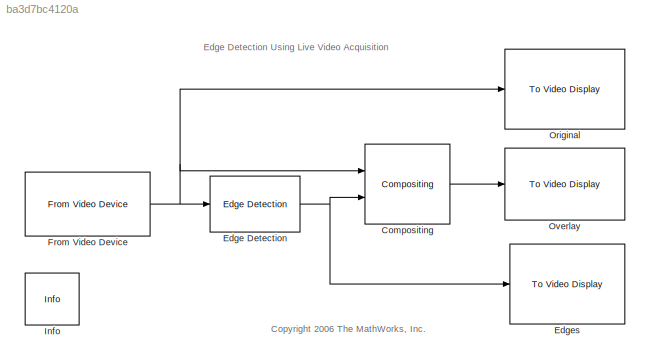
MODEL slx_ba3d7bc4120a
KIND model
CONFIG AbsTol = auto
CONFIG FixedStep = auto
CONFIG MaxStep = auto
CONFIG MinStep = auto
CONFIG RelTol = 1e-3
CONFIG SampleTimeConstraint = Unconstrained
CONFIG Solver = FixedStepDiscrete
CONFIG SolverMode = Auto
CONFIG SolverName = FixedStepDiscrete
CONFIG StartTime = 0.0
CONFIG StopTime = inf
BLOCK [Reference] Compositing  REF=visiontextngfix/Compositing
  LockScale = off
  Ports = [2, 1]
  SourceBlock = visiontextngfix/Compositing
  SourceType = Compositing
  accumFracLength = 10
  accumMode = Same as product output
  accumWordLength = 32
  bFacSrc = Input port
  bFactor = 0.75
  coordinates = [1 1]
  firstCoeffFracLength = 15
  firstCoeffMode = Same word length as input
  firstCoeffWordLength = 16
  mFacSrc = Input port
  mFactor = 1
  operation = Highlight selected pixels
  outputFracLength = 10
  outputMode = Same as first input
  outputWordLength = 32
  overflowMode = off
  prodOutputFracLength = 10
  prodOutputMode = Binary point scaling
  prodOutputWordLength = 32
  roundingMode = Floor
  source = Specify via dialog
BLOCK [Reference] Edge Detection  REF=visionanalysis/Edge Detection
  LockScale = off
  Ports = [1, 1]
  SourceBlock = visionanalysis/Edge Detection
  SourceType = Edge Detection
  accumFracLength = 8
  accumMode = Same as product output
  accumWordLength = 32
  autoPercent = 70
  edgeThinning = on
  method = Sobel
  outputFracLength = 0
  outputMode = Same as first input
  outputType = Binary image
  outputWordLength = 0
  overflowMode = off
  prodOutputFracLength = 8
  prodOutputMode = Same as first input
  prodOutputWordLength = 32
  roundingMode = Floor
  sigma = 1
  threshold = single(50/256)
  thresholdSource = Specify via dialog
  thresholdTuning = 4
  threshold_canny = [0.25 0.60]
  userDefinedThreshold = off
BLOCK [Reference] Edges  REF=visionsinks/To Video Display
  OutputDevice = On-screen video monitor
  Ports = [1]
  SourceBlock = visionsinks/To Video Display
  SourceType = To Video Display
  dataOrg = Column-major
  fullScreen = off
  imagePorts = One multidimensional signal
  inputColorFormat = RGB
  inputType = Obsolete
  isWindowOpen = off
  openAtMdlStart = on
  saveWindowSize = off
  videoWindowHeight = 147
  videoWindowWidth = 168
  videoWindowX = 444
  videoWindowY = 313
  windowSizeMode = True size (1:1)
BLOCK [Reference] From Video Device  REF=imaqlib/From Video Device
  AllMetadata = IsPositionTracked;IsSkeletonTracked;JointDepthIndices;JointImageIndices;JointTrackingState;JointWorldCoordinates;PositionDepthIndices;PositionImageIndices;PositionWorldCoordinates;SegmentationData;SkeletonTrackingID
  BayerSensorAlignment = grbg
  BlockHandle = 30.1971
  CanDoHWTrigger = no
  DataType = single
  DevXMLPath = <path>
  Device = winvideo 1 (ASUS USB2.0 Webcam)
  DeviceMenu = winvideo 1 (ASUS USB2.0 Webcam)
  EnableHWTrigger = off
  EngLibPath = C:\Program Files\MATLAB\MATLAB Production Server\R2015a\toolbox\imaq\imaqblks\imaqmex\win64
  EngXMLPath = C:\Program Files\MATLAB\MATLAB Production Server\R2015a\toolbox\imaq\imaq\private
  ObjConstructor = videoinput('winvideo', 1)
  OutputPortsMode = One multidimensional signal
  Ports = [0, 1]
  ROIColumn = 0
  ROIHeight = 720
  ROIPosition = [0 0 720 1280]
  ROIRow = 0
  ROIWidth = 1280
  ReturnedColorSpace = grayscale
  SampleTime = 1/30
  SourceBlock = imaqlib/From Video Device
  SourceType = From Video Device
  TriggerConfiguration = none/none
  UserDataPersistent = on
  VideoFormat = MJPG_1280x720
  VideoFormatMenu = MJPG_1280x720
  VideoSource = input1
BLOCK [Reference] Info  REF=vipmisc/Info
  FunctionWithSeparateData = off
  GeneratePreprocessorConditionals = off
  Ports = []
  ShowPortLabels = FromPortIcon
  SourceBlock = vipmisc/Info
  SourceType = Info
  SystemSampleTime = -1
BLOCK [Reference] Original  REF=visionsinks/To Video Display
  OutputDevice = On-screen video monitor
  Ports = [1]
  SourceBlock = visionsinks/To Video Display
  SourceType = To Video Display
  dataOrg = Column-major
  fullScreen = off
  imagePorts = One multidimensional signal
  inputColorFormat = RGB
  inputType = Obsolete
  isWindowOpen = off
  openAtMdlStart = on
  saveWindowSize = off
  videoWindowHeight = 720
  videoWindowWidth = 1280
  videoWindowX = 100
  videoWindowY = 312
  windowSizeMode = True size (1:1)
BLOCK [Reference] Overlay  REF=visionsinks/To Video Display
  OutputDevice = On-screen video monitor
  Ports = [1]
  SourceBlock = visionsinks/To Video Display
  SourceType = To Video Display
  dataOrg = Column-major
  fullScreen = off
  imagePorts = One multidimensional signal
  inputColorFormat = RGB
  inputType = Obsolete
  isWindowOpen = off
  openAtMdlStart = on
  saveWindowSize = off
  videoWindowHeight = 720
  videoWindowWidth = 1280
  videoWindowX = 278
  videoWindowY = 203
  windowSizeMode = True size (1:1)
ANNOTATION (root): <copyright redacted>
ANNOTATION (root): Edge Detection Using Live Video Acquisition
LINE Compositing:1 -> Overlay:1
NET Edge Detection:1 -> Compositing:2, Edges:1
NET From Video Device:1 -> Compositing:1, Edge Detection:1, Original:1
note: NET lines group one-source signal fan-out (src -> all destinations, sorted); 1:1 wires keep LINE
note: 1 file-system path scrubbed to <path> (not preserved elsewhere — flat text is the only slx artifact)
